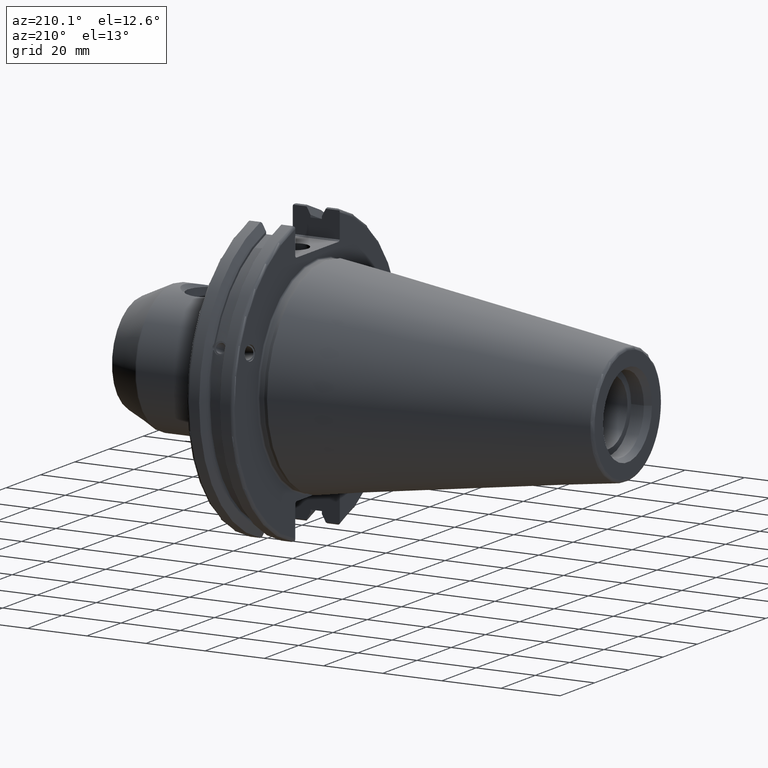
[diagram: clean part render]
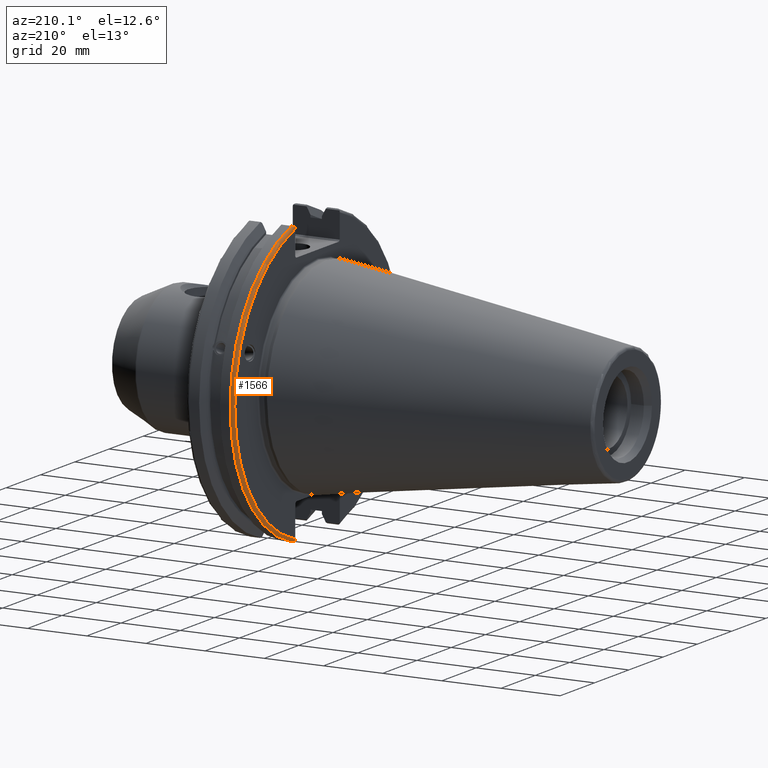
[diagram: same view with one face highlighted and labeled with its STEP entity id]
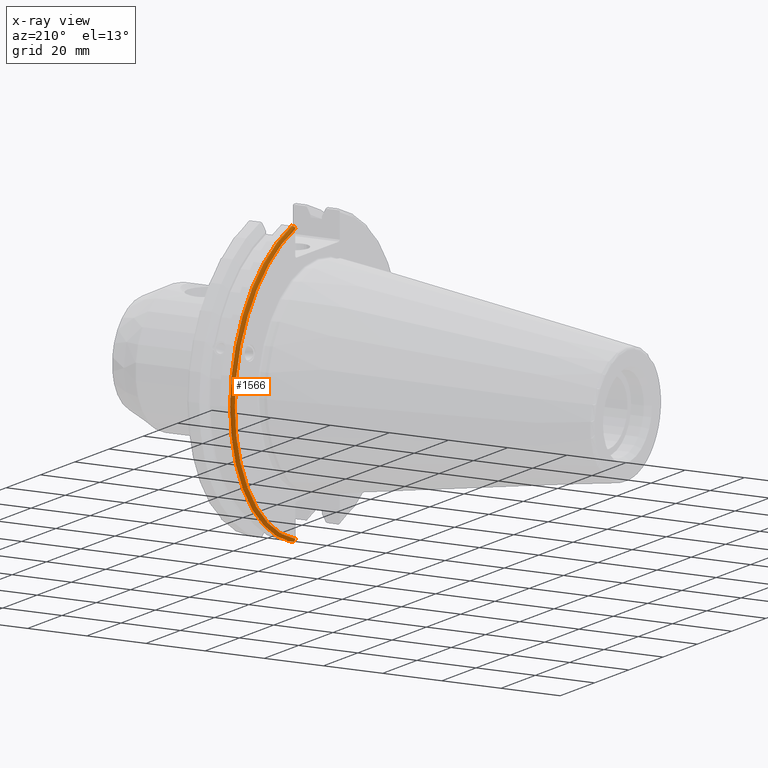
[diagram: x-ray of the same camera — body ghosted, the highlighted face saturated]
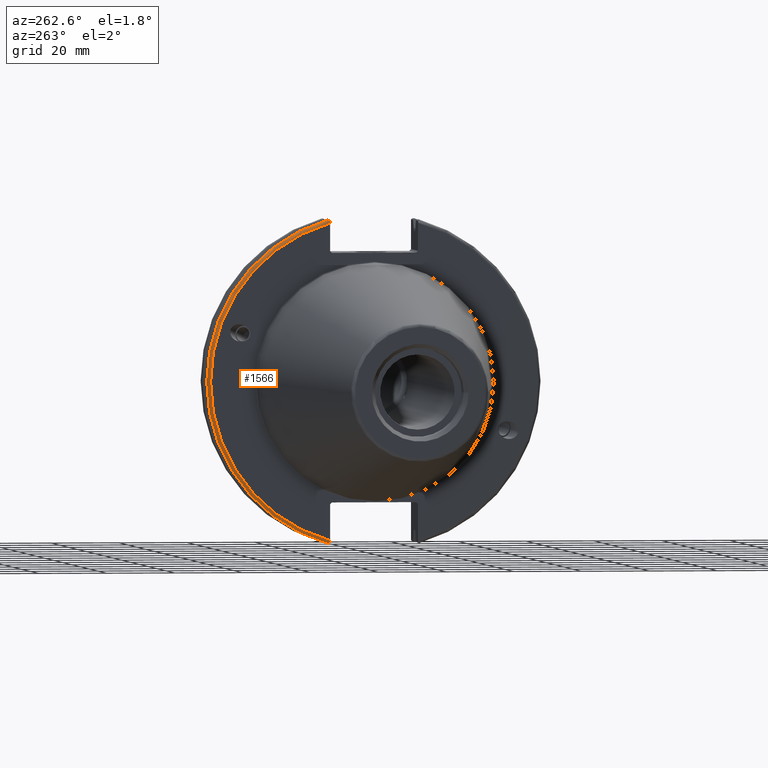
[diagram: same view with one face highlighted and labeled with its STEP entity id]
A machine part, auxiliary view. The second image highlights one B-rep face of the part: STEP entity #1566.
The next image is the same camera in x-ray: the body ghosted, the highlighted face saturated — about 0% of this face is hidden behind the body in this view.
A second angle (auxiliary view) of the same face is appended — the face is thin or edge-on in the first view.
In plain terms, the highlighted toroidal blend (fillet) surface has major radius 48.2125 mm and minor (blend) radius 1 mm.
Its self-contained STEP definition (entity closure, byte-faithful):
#39=TOROIDAL_SURFACE('',#1736,48.2125,1.);
#165=CIRCLE('',#1719,48.2125);
#171=CIRCLE('',#1737,49.2125);
#242=FACE_OUTER_BOUND('',#349,.T.);
#349=EDGE_LOOP('',(#1338,#1339,#1340,#1341,#1342,#1343));
#420=B_SPLINE_CURVE_WITH_KNOTS('',3,(#3101,#3102,#3103,#3104,#3105,#3106),
 .UNSPECIFIED.,.F.,.F.,(4,2,4),(0.0976892167532858,0.112000071948292,0.150881870548587),
 .UNSPECIFIED.);
#429=B_SPLINE_CURVE_WITH_KNOTS('',3,(#3225,#3226,#3227,#3228,#3229,#3230,
#3231,#3232),.UNSPECIFIED.,.F.,.F.,(4,2,2,4),(-0.104075769062722,-0.0730268503455479,
-0.0343639873656265,0.),.UNSPECIFIED.);
#430=B_SPLINE_CURVE_WITH_KNOTS('',3,(#3235,#3236,#3237,#3238,#3239,#3240,
#3241,#3242),.UNSPECIFIED.,.F.,.F.,(4,2,2,4),(0.,0.0343639873656266,0.0730268503455482,
0.104075769062722),.UNSPECIFIED.);
#431=B_SPLINE_CURVE_WITH_KNOTS('',3,(#3243,#3244,#3245,#3246,#3247,#3248),
 .UNSPECIFIED.,.F.,.F.,(4,2,4),(0.452859340315923,0.491741138916218,0.506051994111224),
 .UNSPECIFIED.);
#734=VERTEX_POINT('',#3044);
#735=VERTEX_POINT('',#3046);
#745=VERTEX_POINT('',#3100);
#765=VERTEX_POINT('',#3223);
#766=VERTEX_POINT('',#3224);
#767=VERTEX_POINT('',#3233);
#926=EDGE_CURVE('',#735,#734,#165,.T.);
#942=EDGE_CURVE('',#745,#735,#420,.T.);
#974=EDGE_CURVE('',#765,#766,#429,.T.);
#975=EDGE_CURVE('',#766,#767,#171,.T.);
#976=EDGE_CURVE('',#767,#745,#430,.T.);
#977=EDGE_CURVE('',#734,#765,#431,.T.);
#1338=ORIENTED_EDGE('',*,*,#974,.T.);
#1339=ORIENTED_EDGE('',*,*,#975,.T.);
#1340=ORIENTED_EDGE('',*,*,#976,.T.);
#1341=ORIENTED_EDGE('',*,*,#942,.T.);
#1342=ORIENTED_EDGE('',*,*,#926,.T.);
#1343=ORIENTED_EDGE('',*,*,#977,.T.);
#1566=ADVANCED_FACE('',(#242),#39,.T.);
#1719=AXIS2_PLACEMENT_3D('',#3047,#2034,#2035);
#1736=AXIS2_PLACEMENT_3D('',#3222,#2092,#2093);
#1737=AXIS2_PLACEMENT_3D('',#3234,#2094,#2095);
#2034=DIRECTION('center_axis',(1.,0.,0.));
#2035=DIRECTION('ref_axis',(0.,1.,-6.12323399573677E-17));
#2092=DIRECTION('center_axis',(1.,0.,0.));
#2093=DIRECTION('ref_axis',(0.,0.,-1.));
#2094=DIRECTION('center_axis',(-1.,0.,0.));
#2095=DIRECTION('ref_axis',(0.,1.,-6.12323399573677E-17));
#3044=CARTESIAN_POINT('',(3.175,12.95,46.4407434937254));
#3046=CARTESIAN_POINT('',(3.175,12.95,-46.4407434937254));
#3047=CARTESIAN_POINT('Origin',(3.175,0.,0.));
#3100=CARTESIAN_POINT('',(3.31949794294344,12.95,-46.9780755322918));
#3101=CARTESIAN_POINT('Ctrl Pts',(3.31949794294344,12.95,-46.9780755322918));
#3102=CARTESIAN_POINT('Ctrl Pts',(3.29341556483839,12.95,-46.9333752207329));
#3103=CARTESIAN_POINT('Ctrl Pts',(3.27115672912336,12.95,-46.887363294568));
#3104=CARTESIAN_POINT('Ctrl Pts',(3.20453530071253,12.95,-46.7230464903732));
#3105=CARTESIAN_POINT('Ctrl Pts',(3.175,12.95,-46.5703494890597));
#3106=CARTESIAN_POINT('Ctrl Pts',(3.175,12.95,-46.4407434937254));
#3222=CARTESIAN_POINT('Origin',(4.175,0.,0.));
#3223=CARTESIAN_POINT('',(3.31949794294344,12.95,46.9780755322918));
#3224=CARTESIAN_POINT('',(4.175,13.4317035994433,47.3440544806494));
#3225=CARTESIAN_POINT('Ctrl Pts',(3.31949794294344,12.95,46.9780755322918));
#3226=CARTESIAN_POINT('Ctrl Pts',(3.36785032278754,13.0300321736484,47.0388807469102));
#3227=CARTESIAN_POINT('Ctrl Pts',(3.43235971798504,13.1083611826073,47.0983919657547));
#3228=CARTESIAN_POINT('Ctrl Pts',(3.58507512107923,13.2478194810695,47.2043467509586));
#3229=CARTESIAN_POINT('Ctrl Pts',(3.70638116490965,13.3242014686233,47.2623787015413));
#3230=CARTESIAN_POINT('Ctrl Pts',(3.92661103245834,13.4067722493645,47.3251126473446));
#3231=CARTESIAN_POINT('Ctrl Pts',(4.06045337544791,13.4317035994433,47.3440544806494));
#3232=CARTESIAN_POINT('Ctrl Pts',(4.175,13.4317035994433,47.3440544806494));
#3233=CARTESIAN_POINT('',(4.175,13.4317035994433,-47.3440544806494));
#3234=CARTESIAN_POINT('Origin',(4.175,0.,0.));
#3235=CARTESIAN_POINT('Ctrl Pts',(4.175,13.4317035994433,-47.3440544806494));
#3236=CARTESIAN_POINT('Ctrl Pts',(4.06045337544791,13.4317035994433,-47.3440544806494));
#3237=CARTESIAN_POINT('Ctrl Pts',(3.92661103245834,13.4067722493645,-47.3251126473446));
#3238=CARTESIAN_POINT('Ctrl Pts',(3.70638116490964,13.3242014686232,-47.2623787015413));
#3239=CARTESIAN_POINT('Ctrl Pts',(3.58507512107923,13.2478194810695,-47.2043467509586));
#3240=CARTESIAN_POINT('Ctrl Pts',(3.43235971798504,13.1083611826073,-47.0983919657547));
#3241=CARTESIAN_POINT('Ctrl Pts',(3.36785032278754,13.0300321736484,-47.0388807469102));
#3242=CARTESIAN_POINT('Ctrl Pts',(3.31949794294344,12.95,-46.9780755322918));
#3243=CARTESIAN_POINT('Ctrl Pts',(3.175,12.95,46.4407434937254));
#3244=CARTESIAN_POINT('Ctrl Pts',(3.175,12.95,46.5703494890597));
#3245=CARTESIAN_POINT('Ctrl Pts',(3.20453530071253,12.95,46.7230464903732));
#3246=CARTESIAN_POINT('Ctrl Pts',(3.27115672912336,12.95,46.887363294568));
#3247=CARTESIAN_POINT('Ctrl Pts',(3.29341556483839,12.95,46.9333752207329));
#3248=CARTESIAN_POINT('Ctrl Pts',(3.31949794294344,12.95,46.9780755322918));